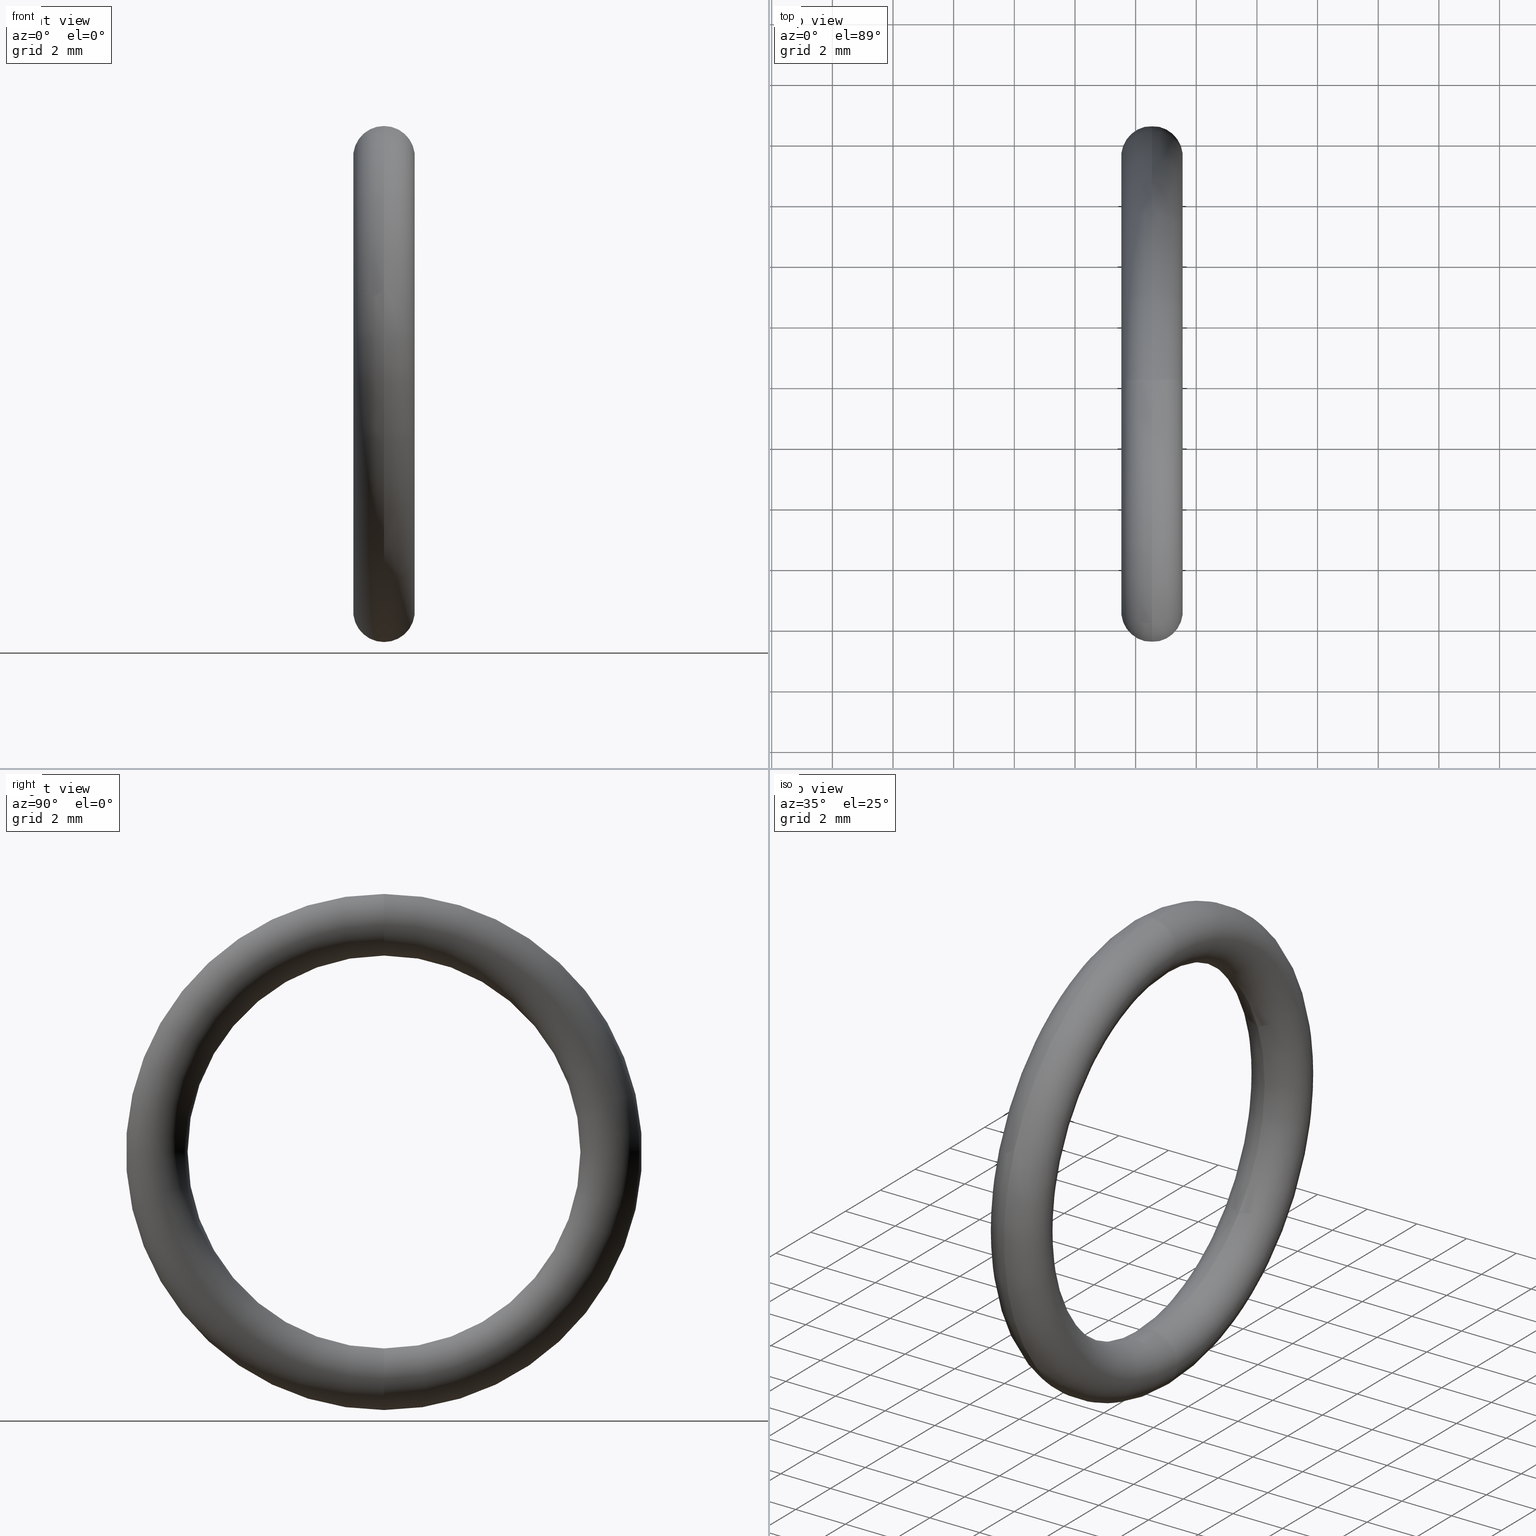
[diagram: canonical four-view strip — front | top / right | iso, engineering-drawing reading convention]
A machine part, canonical four-view strip (front | top / right | iso — engineering-drawing reading convention). The complete STEP part file that produces these views, byte-faithful:
ISO-10303-21;
HEADER;
FILE_DESCRIPTION (( 'STEP AP203' ),
    '1' );
FILE_NAME ('OR-38-SI.STEP',
    '2006-03-03T07:36:27',
    ( 'bay06' ),
    ( '' ),
    'SwSTEP 2.0',
    'SolidWorks 2008',
    '' );
FILE_SCHEMA (( 'CONFIG_CONTROL_DESIGN' ));
ENDSEC;

DATA;
#1 = APPLICATION_PROTOCOL_DEFINITION ( 'international standard', 'config_control_design', 1994, #2 ) ;
#2 = APPLICATION_CONTEXT ( 'configuration controlled 3d designs of mechanical parts and assemblies' ) ;
#3 = MECHANICAL_CONTEXT ( 'NONE', #2, 'mechanical' ) ;
#4 = COORDINATED_UNIVERSAL_TIME_OFFSET ( 5, 30, .AHEAD. ) ;
#5 = LOCAL_TIME ( 13, 6, 27.00000000000000000, #4 ) ;
#6 = ORIENTED_EDGE ( 'NONE', *, *, #32, .F. ) ;
#7 = EDGE_CURVE ( 'NONE', #33, #43, #51, .T. ) ;
#8 = EDGE_CURVE ( 'NONE', #41, #43, #49, .T. ) ;
#9 = ORIENTED_EDGE ( 'NONE', *, *, #40, .F. ) ;
#10 = ORIENTED_EDGE ( 'NONE', *, *, #11, .F. ) ;
#11 = EDGE_CURVE ( 'NONE', #41, #30, #69, .T. ) ;
#12 = ADVANCED_FACE ( 'NONE', ( #70 ), #66, .T. ) ;
#13 = ADVANCED_FACE ( 'NONE', ( #52 ), #93, .T. ) ;
#14 = EDGE_LOOP ( 'NONE', ( #9, #15, #36, #10 ) ) ;
#15 = ORIENTED_EDGE ( 'NONE', *, *, #35, .T. ) ;
#16 = ORIENTED_EDGE ( 'NONE', *, *, #37, .T. ) ;
#17 = ORIENTED_EDGE ( 'NONE', *, *, #8, .T. ) ;
#18 = EDGE_LOOP ( 'NONE', ( #20, #23, #16, #17 ) ) ;
#19 = EDGE_CURVE ( 'NONE', #30, #33, #89, .T. ) ;
#20 = ORIENTED_EDGE ( 'NONE', *, *, #7, .F. ) ;
#21 = CLOSED_SHELL ( 'NONE', ( #34, #13, #12, #22 ) ) ;
#22 = ADVANCED_FACE ( 'NONE', ( #90 ), #67, .T. ) ;
#23 = ORIENTED_EDGE ( 'NONE', *, *, #19, .F. ) ;
#24 = ORIENTED_EDGE ( 'NONE', *, *, #19, .T. ) ;
#25 = EDGE_LOOP ( 'NONE', ( #26, #27, #38, #24 ) ) ;
#26 = ORIENTED_EDGE ( 'NONE', *, *, #35, .F. ) ;
#27 = ORIENTED_EDGE ( 'NONE', *, *, #8, .F. ) ;
#28 = EDGE_LOOP ( 'NONE', ( #6, #31, #42, #39 ) ) ;
#29 = MANIFOLD_SOLID_BREP ( 'NONE', #21 ) ;
#30 = VERTEX_POINT ( 'NONE', #79 ) ;
#31 = ORIENTED_EDGE ( 'NONE', *, *, #7, .T. ) ;
#32 = EDGE_CURVE ( 'NONE', #33, #30, #75, .T. ) ;
#33 = VERTEX_POINT ( 'NONE', #61 ) ;
#34 = ADVANCED_FACE ( 'NONE', ( #60 ), #57, .T. ) ;
#35 = EDGE_CURVE ( 'NONE', #43, #33, #58, .T. ) ;
#36 = ORIENTED_EDGE ( 'NONE', *, *, #32, .T. ) ;
#37 = EDGE_CURVE ( 'NONE', #30, #41, #114, .T. ) ;
#38 = ORIENTED_EDGE ( 'NONE', *, *, #11, .T. ) ;
#39 = ORIENTED_EDGE ( 'NONE', *, *, #37, .F. ) ;
#40 = EDGE_CURVE ( 'NONE', #43, #41, #148, .T. ) ;
#41 = VERTEX_POINT ( 'NONE', #120 ) ;
#42 = ORIENTED_EDGE ( 'NONE', *, *, #40, .T. ) ;
#43 = VERTEX_POINT ( 'NONE', #130 ) ;
#44 = AXIS2_PLACEMENT_3D ( 'NONE', #92, #101, #50 ) ;
#45 = CARTESIAN_POINT ( 'NONE',  ( 0.1000000000000000500, 0.0000000000000000000, 0.2949999999999999800 ) ) ;
#46 = CARTESIAN_POINT ( 'NONE',  ( 0.1000000000000000500, 3.612708057484692000E-017, -0.2949999999999999800 ) ) ;
#47 = DIRECTION ( 'NONE',  ( 0.0000000000000000000, 0.0000000000000000000, 1.000000000000000000 ) ) ;
#48 = DIRECTION ( 'NONE',  ( -1.000000000000000000, -0.0000000000000000000, -0.0000000000000000000 ) ) ;
#49 = CIRCLE ( 'NONE', #91, 0.03999999999999998000 ) ;
#50 = DIRECTION ( 'NONE',  ( 0.0000000000000000000, 0.0000000000000000000, 1.000000000000000000 ) ) ;
#51 = CIRCLE ( 'NONE', #44, 0.3349999999999999600 ) ;
#52 = FACE_OUTER_BOUND ( 'NONE', #14, .T. ) ;
#53 = DIRECTION ( 'NONE',  ( 0.0000000000000000000, 0.0000000000000000000, 1.000000000000000000 ) ) ;
#54 = DIRECTION ( 'NONE',  ( -1.000000000000000000, -0.0000000000000000000, -0.0000000000000000000 ) ) ;
#55 = CARTESIAN_POINT ( 'NONE',  ( 0.1000000000000000500, 0.0000000000000000000, 0.0000000000000000000 ) ) ;
#56 = AXIS2_PLACEMENT_3D ( 'NONE', #59, #87, #86 ) ;
#57 = TOROIDAL_SURFACE ( 'NONE', #56, 0.2949999999999999800, 0.04000000000000000100 ) ;
#58 = CIRCLE ( 'NONE', #84, 0.3349999999999999600 ) ;
#59 = CARTESIAN_POINT ( 'NONE',  ( 0.1000000000000000500, 0.0000000000000000000, 0.0000000000000000000 ) ) ;
#60 = FACE_OUTER_BOUND ( 'NONE', #28, .T. ) ;
#61 = CARTESIAN_POINT ( 'NONE',  ( 0.1000000000000000500, 4.102566777143632800E-017, -0.3349999999999999600 ) ) ;
#62 = CARTESIAN_POINT ( 'NONE',  ( 0.1000000000000000500, 0.0000000000000000000, 0.0000000000000000000 ) ) ;
#63 = DIRECTION ( 'NONE',  ( 0.0000000000000000000, -1.224646799147353900E-016, 1.000000000000000000 ) ) ;
#64 = DIRECTION ( 'NONE',  ( -0.0000000000000000000, 1.000000000000000000, 1.224646799147353200E-016 ) ) ;
#65 = AXIS2_PLACEMENT_3D ( 'NONE', #46, #64, #63 ) ;
#66 = TOROIDAL_SURFACE ( 'NONE', #100, 0.2949999999999999800, 0.04000000000000000100 ) ;
#67 = TOROIDAL_SURFACE ( 'NONE', #78, 0.2949999999999999800, 0.04000000000000000100 ) ;
#68 = AXIS2_PLACEMENT_3D ( 'NONE', #98, #97, #96 ) ;
#69 = CIRCLE ( 'NONE', #68, 0.2550000000000000000 ) ;
#70 = FACE_OUTER_BOUND ( 'NONE', #25, .T. ) ;
#71 = DIRECTION ( 'NONE',  ( 0.0000000000000000000, -1.224646799147353900E-016, 1.000000000000000000 ) ) ;
#72 = DIRECTION ( 'NONE',  ( -0.0000000000000000000, 1.000000000000000000, 1.224646799147353200E-016 ) ) ;
#73 = CARTESIAN_POINT ( 'NONE',  ( 0.1000000000000000500, 3.612708057484692000E-017, -0.2949999999999999800 ) ) ;
#74 = AXIS2_PLACEMENT_3D ( 'NONE', #73, #72, #71 ) ;
#75 = CIRCLE ( 'NONE', #74, 0.03999999999999998000 ) ;
#76 = DIRECTION ( 'NONE',  ( 0.0000000000000000000, 0.0000000000000000000, 1.000000000000000000 ) ) ;
#77 = DIRECTION ( 'NONE',  ( -1.000000000000000000, -0.0000000000000000000, -0.0000000000000000000 ) ) ;
#78 = AXIS2_PLACEMENT_3D ( 'NONE', #62, #77, #76 ) ;
#79 = CARTESIAN_POINT ( 'NONE',  ( 0.1000000000000000500, 3.122849337825750500E-017, -0.2550000000000000000 ) ) ;
#80 = PERSON ( 'UNSPECIFIED', 'UNSPECIFIED', 'UNSPECIFIED', ('UNSPECIFIED'), ('UNSPECIFIED'), ('UNSPECIFIED') ) ;
#81 = DIRECTION ( 'NONE',  ( 0.0000000000000000000, 0.0000000000000000000, 1.000000000000000000 ) ) ;
#82 = DIRECTION ( 'NONE',  ( -1.000000000000000000, -0.0000000000000000000, -0.0000000000000000000 ) ) ;
#83 = CARTESIAN_POINT ( 'NONE',  ( 0.1000000000000000500, 0.0000000000000000000, 0.0000000000000000000 ) ) ;
#84 = AXIS2_PLACEMENT_3D ( 'NONE', #83, #82, #81 ) ;
#85 = PRODUCT ( 'OR-38-SI', 'OR-38-SI', '', ( #3 ) ) ;
#86 = DIRECTION ( 'NONE',  ( 0.0000000000000000000, 0.0000000000000000000, 1.000000000000000000 ) ) ;
#87 = DIRECTION ( 'NONE',  ( -1.000000000000000000, -0.0000000000000000000, -0.0000000000000000000 ) ) ;
#88 = DIRECTION ( 'NONE',  ( 0.0000000000000000000, -1.000000000000000000, 0.0000000000000000000 ) ) ;
#89 = CIRCLE ( 'NONE', #65, 0.03999999999999998000 ) ;
#90 = FACE_OUTER_BOUND ( 'NONE', #18, .T. ) ;
#91 = AXIS2_PLACEMENT_3D ( 'NONE', #45, #88, #99 ) ;
#92 = CARTESIAN_POINT ( 'NONE',  ( 0.1000000000000000500, 0.0000000000000000000, 0.0000000000000000000 ) ) ;
#93 = TOROIDAL_SURFACE ( 'NONE', #95, 0.2949999999999999800, 0.04000000000000000100 ) ;
#94 = CARTESIAN_POINT ( 'NONE',  ( 0.1000000000000000500, 0.0000000000000000000, 0.0000000000000000000 ) ) ;
#95 = AXIS2_PLACEMENT_3D ( 'NONE', #94, #48, #47 ) ;
#96 = DIRECTION ( 'NONE',  ( 0.0000000000000000000, 0.0000000000000000000, 1.000000000000000000 ) ) ;
#97 = DIRECTION ( 'NONE',  ( -1.000000000000000000, -0.0000000000000000000, -0.0000000000000000000 ) ) ;
#98 = CARTESIAN_POINT ( 'NONE',  ( 0.1000000000000000500, 0.0000000000000000000, 0.0000000000000000000 ) ) ;
#99 = DIRECTION ( 'NONE',  ( 0.0000000000000000000, 0.0000000000000000000, -1.000000000000000000 ) ) ;
#100 = AXIS2_PLACEMENT_3D ( 'NONE', #55, #54, #53 ) ;
#101 = DIRECTION ( 'NONE',  ( -1.000000000000000000, -0.0000000000000000000, -0.0000000000000000000 ) ) ;
#102 = APPROVAL_STATUS ( 'not_yet_approved' ) ;
#103 = PERSON_AND_ORGANIZATION ( #80, #109 ) ;
#104 = PRODUCT_DEFINITION ( 'UNKNOWN', '', #195, #105 ) ;
#105 = DESIGN_CONTEXT ( 'detailed design', #107, 'design' ) ;
#106 = APPLICATION_PROTOCOL_DEFINITION ( 'international standard', 'config_control_design', 1994, #107 ) ;
#107 = APPLICATION_CONTEXT ( 'configuration controlled 3d designs of mechanical parts and assemblies' ) ;
#108 = CC_DESIGN_PERSON_AND_ORGANIZATION_ASSIGNMENT ( #115, #113, ( #85 ) ) ;
#109 = ORGANIZATION ( 'UNSPECIFIED', 'UNSPECIFIED', '' ) ;
#110 = DIRECTION ( 'NONE',  ( 1.000000000000000000, 0.0000000000000000000, 0.0000000000000000000 ) ) ;
#111 = DIRECTION ( 'NONE',  ( 0.0000000000000000000, 0.0000000000000000000, 1.000000000000000000 ) ) ;
#112 = AXIS2_PLACEMENT_3D ( 'NONE', #129, #111, #110 ) ;
#113 = PERSON_AND_ORGANIZATION_ROLE ( 'design_owner' ) ;
#114 = CIRCLE ( 'NONE', #135, 0.2550000000000000000 ) ;
#115 = PERSON_AND_ORGANIZATION ( #80, #109 ) ;
#116 = ADVANCED_BREP_SHAPE_REPRESENTATION ( 'OR-38-SI', ( #29, #112 ), #117 ) ;
#117 =( GEOMETRIC_REPRESENTATION_CONTEXT ( 3 ) GLOBAL_UNCERTAINTY_ASSIGNED_CONTEXT ( ( #121 ) ) GLOBAL_UNIT_ASSIGNED_CONTEXT ( ( #127, #123, #122 ) ) REPRESENTATION_CONTEXT ( 'NONE', 'WORKASPACE' ) );
#118 = DIRECTION ( 'NONE',  ( -1.000000000000000000, -0.0000000000000000000, -0.0000000000000000000 ) ) ;
#119 = AXIS2_PLACEMENT_3D ( 'NONE', #134, #132, #131 ) ;
#120 = CARTESIAN_POINT ( 'NONE',  ( 0.1000000000000000500, 0.0000000000000000000, 0.2550000000000000000 ) ) ;
#121 = UNCERTAINTY_MEASURE_WITH_UNIT (LENGTH_MEASURE( 1.000000000000000100E-005 ), #127, 'distance_accuracy_value', 'NONE');
#122 =( NAMED_UNIT ( * ) SI_UNIT ( $, .STERADIAN. ) SOLID_ANGLE_UNIT ( ) );
#123 =( NAMED_UNIT ( * ) PLANE_ANGLE_UNIT ( ) SI_UNIT ( $, .RADIAN. ) );
#124 = CARTESIAN_POINT ( 'NONE',  ( 0.1000000000000000500, 0.0000000000000000000, 0.0000000000000000000 ) ) ;
#125 = DIMENSIONAL_EXPONENTS ( 1.000000000000000000, 0.0000000000000000000, 0.0000000000000000000, 0.0000000000000000000, 0.0000000000000000000, 0.0000000000000000000, 0.0000000000000000000 ) ;
#126 =( LENGTH_UNIT ( ) NAMED_UNIT ( * ) SI_UNIT ( $, .METRE. ) );
#127 =( CONVERSION_BASED_UNIT ( 'INCH', #128 ) LENGTH_UNIT ( ) NAMED_UNIT ( #125 ) );
#128 = LENGTH_MEASURE_WITH_UNIT ( LENGTH_MEASURE( 0.02539999999999999900 ), #126 );
#129 = CARTESIAN_POINT ( 'NONE',  ( 0.0000000000000000000, 0.0000000000000000000, 0.0000000000000000000 ) ) ;
#130 = CARTESIAN_POINT ( 'NONE',  ( 0.1000000000000000500, 0.0000000000000000000, 0.3349999999999999600 ) ) ;
#131 = DIRECTION ( 'NONE',  ( 0.0000000000000000000, 0.0000000000000000000, -1.000000000000000000 ) ) ;
#132 = DIRECTION ( 'NONE',  ( 0.0000000000000000000, -1.000000000000000000, 0.0000000000000000000 ) ) ;
#133 = DIRECTION ( 'NONE',  ( 0.0000000000000000000, 0.0000000000000000000, 1.000000000000000000 ) ) ;
#134 = CARTESIAN_POINT ( 'NONE',  ( 0.1000000000000000500, 0.0000000000000000000, 0.2949999999999999800 ) ) ;
#135 = AXIS2_PLACEMENT_3D ( 'NONE', #124, #118, #133 ) ;
#136 = CC_DESIGN_PERSON_AND_ORGANIZATION_ASSIGNMENT ( #138, #137, ( #104 ) ) ;
#137 = PERSON_AND_ORGANIZATION_ROLE ( 'creator' ) ;
#138 = PERSON_AND_ORGANIZATION ( #80, #109 ) ;
#139 = CC_DESIGN_APPROVAL ( #147, ( #104 ) ) ;
#140 = APPROVAL_DATE_TIME ( #141, #147 ) ;
#141 = DATE_AND_TIME ( #142, #143 ) ;
#142 = CALENDAR_DATE ( 2006, 3, 3 ) ;
#143 = LOCAL_TIME ( 13, 6, 27.00000000000000000, #144 ) ;
#144 = COORDINATED_UNIVERSAL_TIME_OFFSET ( 5, 30, .AHEAD. ) ;
#145 = APPROVAL_PERSON_ORGANIZATION ( #103, #147, #146 ) ;
#146 = APPROVAL_ROLE ( '' ) ;
#147 = APPROVAL ( #102, 'UNSPECIFIED' ) ;
#148 = CIRCLE ( 'NONE', #119, 0.03999999999999998000 ) ;
#149 = CC_DESIGN_DATE_AND_TIME_ASSIGNMENT ( #185, #184, ( #104 ) ) ;
#150 = PRODUCT_DEFINITION_SHAPE ( 'NONE', 'NONE',  #104 ) ;
#151 = PRODUCT_RELATED_PRODUCT_CATEGORY ( 'detail', '', ( #85 ) ) ;
#152 = CC_DESIGN_SECURITY_CLASSIFICATION ( #173, ( #195 ) ) ;
#153 = CC_DESIGN_APPROVAL ( #161, ( #173 ) ) ;
#154 = APPROVAL_DATE_TIME ( #155, #161 ) ;
#155 = DATE_AND_TIME ( #156, #157 ) ;
#156 = CALENDAR_DATE ( 2006, 3, 3 ) ;
#157 = LOCAL_TIME ( 13, 6, 27.00000000000000000, #158 ) ;
#158 = COORDINATED_UNIVERSAL_TIME_OFFSET ( 5, 30, .AHEAD. ) ;
#159 = APPROVAL_PERSON_ORGANIZATION ( #163, #161, #160 ) ;
#160 = APPROVAL_ROLE ( '' ) ;
#161 = APPROVAL ( #162, 'UNSPECIFIED' ) ;
#162 = APPROVAL_STATUS ( 'not_yet_approved' ) ;
#163 = PERSON_AND_ORGANIZATION ( #80, #109 ) ;
#164 = CC_DESIGN_DATE_AND_TIME_ASSIGNMENT ( #166, #165, ( #173 ) ) ;
#165 = DATE_TIME_ROLE ( 'classification_date' ) ;
#166 = DATE_AND_TIME ( #167, #168 ) ;
#167 = CALENDAR_DATE ( 2006, 3, 3 ) ;
#168 = LOCAL_TIME ( 13, 6, 27.00000000000000000, #169 ) ;
#169 = COORDINATED_UNIVERSAL_TIME_OFFSET ( 5, 30, .AHEAD. ) ;
#170 = CC_DESIGN_PERSON_AND_ORGANIZATION_ASSIGNMENT ( #172, #171, ( #173 ) ) ;
#171 = PERSON_AND_ORGANIZATION_ROLE ( 'classification_officer' ) ;
#172 = PERSON_AND_ORGANIZATION ( #80, #109 ) ;
#173 = SECURITY_CLASSIFICATION ( '', '', #174 ) ;
#174 = SECURITY_CLASSIFICATION_LEVEL ( 'unclassified' ) ;
#175 = CC_DESIGN_PERSON_AND_ORGANIZATION_ASSIGNMENT ( #177, #176, ( #195 ) ) ;
#176 = PERSON_AND_ORGANIZATION_ROLE ( 'design_supplier' ) ;
#177 = PERSON_AND_ORGANIZATION ( #80, #109 ) ;
#178 = CC_DESIGN_PERSON_AND_ORGANIZATION_ASSIGNMENT ( #188, #187, ( #195 ) ) ;
#179 = DATE_AND_TIME ( #191, #180 ) ;
#180 = LOCAL_TIME ( 13, 6, 27.00000000000000000, #181 ) ;
#181 = COORDINATED_UNIVERSAL_TIME_OFFSET ( 5, 30, .AHEAD. ) ;
#182 = APPROVAL_PERSON_ORGANIZATION ( #194, #192, #183 ) ;
#183 = APPROVAL_ROLE ( '' ) ;
#184 = DATE_TIME_ROLE ( 'creation_date' ) ;
#185 = DATE_AND_TIME ( #186, #5 ) ;
#186 = CALENDAR_DATE ( 2006, 3, 3 ) ;
#187 = PERSON_AND_ORGANIZATION_ROLE ( 'creator' ) ;
#188 = PERSON_AND_ORGANIZATION ( #80, #109 ) ;
#189 = CC_DESIGN_APPROVAL ( #192, ( #195 ) ) ;
#190 = APPROVAL_DATE_TIME ( #179, #192 ) ;
#191 = CALENDAR_DATE ( 2006, 3, 3 ) ;
#192 = APPROVAL ( #193, 'UNSPECIFIED' ) ;
#193 = APPROVAL_STATUS ( 'not_yet_approved' ) ;
#194 = PERSON_AND_ORGANIZATION ( #80, #109 ) ;
#195 = PRODUCT_DEFINITION_FORMATION_WITH_SPECIFIED_SOURCE ( 'ANY', '', #85, .NOT_KNOWN. ) ;
#196 = SHAPE_DEFINITION_REPRESENTATION ( #150, #116 ) ;
ENDSEC;
END-ISO-10303-21;
